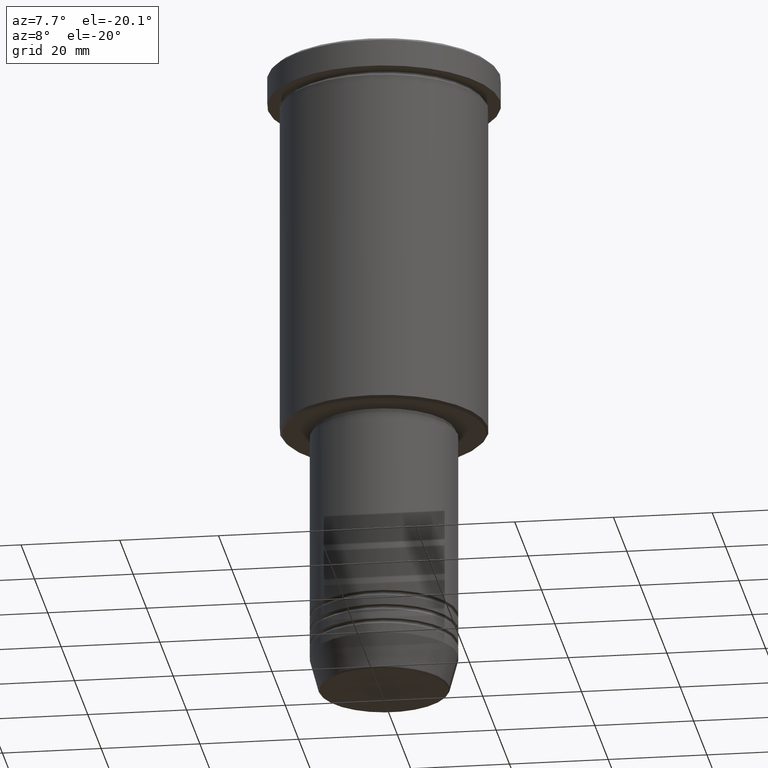
[diagram: clean part render]
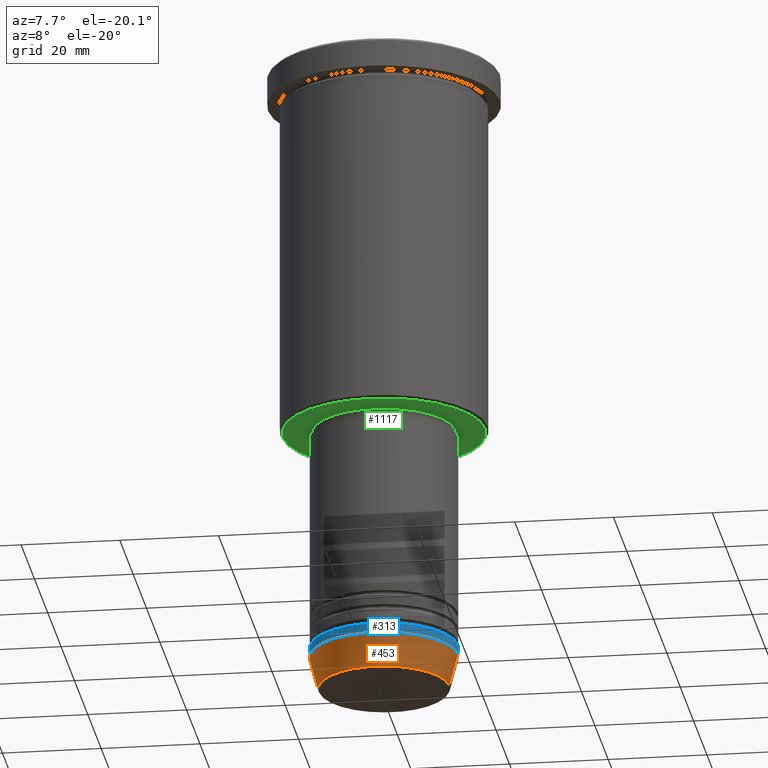
[diagram: same view with three faces highlighted in distinct colors, each labeled with its STEP entity id]
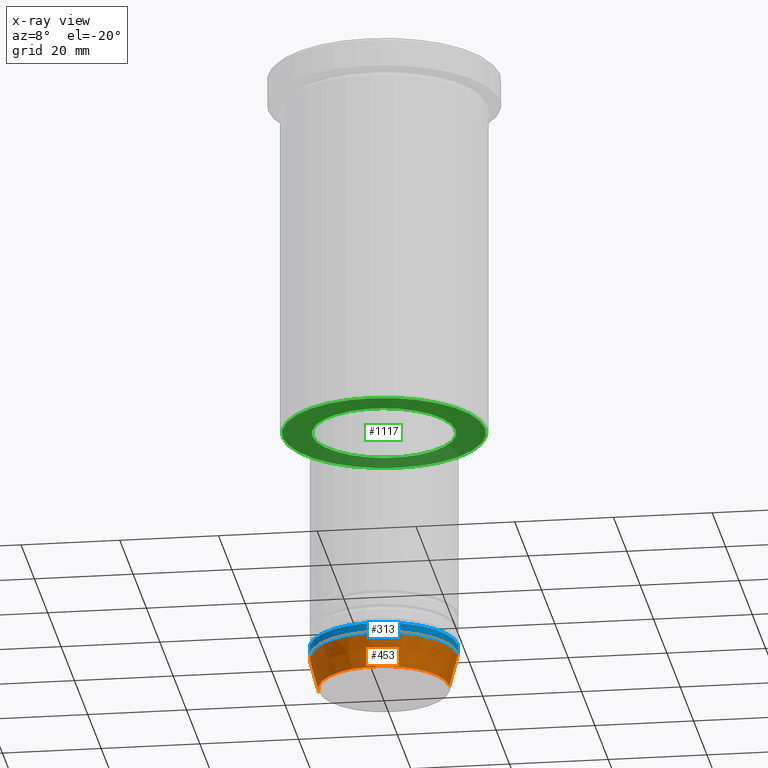
[diagram: x-ray of the same camera — body ghosted, the three highlighted faces saturated]
A machine part, auxiliary view with three faces highlighted in distinct colors.
The next image is the same camera in x-ray (body ghosted, the three faces saturated) — at least one of them is partly hidden behind the body in this view.
Their STEP definitions:

[orange] entity #453 — the highlighted conical surface has half-angle 15 deg.
#65 = VECTOR ( 'NONE', #552, 1000.000000000000000 ) ;
#73 = ORIENTED_EDGE ( 'NONE', *, *, #560, .F. ) ;
#79 = VECTOR ( 'NONE', #102, 1000.000000000000000 ) ;
#86 = DIRECTION ( 'NONE',  ( 1.000000000000000000, 0.000000000000000000, 0.000000000000000000 ) ) ;
#102 = DIRECTION ( 'NONE',  ( 0.2588190451025213501, 0.000000000000000000, 0.9659258262890680902 ) ) ;
#106 = EDGE_CURVE ( 'NONE', #672, #546, #416, .T. ) ;
#131 = FACE_OUTER_BOUND ( 'NONE', #980, .T. ) ;
#173 = AXIS2_PLACEMENT_3D ( 'NONE', #723, #253, #332 ) ;
#214 = CARTESIAN_POINT ( 'NONE',  ( -13.22365507213719305, 1.728200442216588386E-15, -130.6294095225512422 ) ) ;
#243 = AXIS2_PLACEMENT_3D ( 'NONE', #1007, #274, #86 ) ;
#253 = DIRECTION ( 'NONE',  ( -0.000000000000000000, -0.000000000000000000, 1.000000000000000000 ) ) ;
#274 = DIRECTION ( 'NONE',  ( -0.000000000000000000, -0.000000000000000000, 1.000000000000000000 ) ) ;
#277 = CARTESIAN_POINT ( 'NONE',  ( -15.00000000000000000, 1.836970198721029589E-15, -124.0000000000000000 ) ) ;
#332 = DIRECTION ( 'NONE',  ( 1.000000000000000000, 0.000000000000000000, 0.000000000000000000 ) ) ;
#389 = CARTESIAN_POINT ( 'NONE',  ( 13.22365507213719305, 0.000000000000000000, -130.6294095225512422 ) ) ;
#390 = DIRECTION ( 'NONE',  ( -0.000000000000000000, -0.000000000000000000, 1.000000000000000000 ) ) ;
#416 = CIRCLE ( 'NONE', #243, 15.00000000000000000 ) ;
#418 = AXIS2_PLACEMENT_3D ( 'NONE', #646, #390, #573 ) ;
#453 = ADVANCED_FACE ( 'NONE', ( #131 ), #1162, .T. ) ;
#460 = VERTEX_POINT ( 'NONE', #214 ) ;
#462 = ORIENTED_EDGE ( 'NONE', *, *, #106, .F. ) ;
#488 = CARTESIAN_POINT ( 'NONE',  ( -15.00000000000000000, 1.836970198721029589E-15, -124.0000000000000000 ) ) ;
#546 = VERTEX_POINT ( 'NONE', #841 ) ;
#552 = DIRECTION ( 'NONE',  ( -0.2588190451025213501, 3.169619151431772337E-17, 0.9659258262890680902 ) ) ;
#560 = EDGE_CURVE ( 'NONE', #460, #672, #731, .T. ) ;
#573 = DIRECTION ( 'NONE',  ( 1.000000000000000000, 0.000000000000000000, 0.000000000000000000 ) ) ;
#582 = CIRCLE ( 'NONE', #173, 13.22365507213719305 ) ;
#646 = CARTESIAN_POINT ( 'NONE',  ( 0.000000000000000000, 0.000000000000000000, -124.0000000000000000 ) ) ;
#672 = VERTEX_POINT ( 'NONE', #488 ) ;
#679 = ORIENTED_EDGE ( 'NONE', *, *, #884, .T. ) ;
#723 = CARTESIAN_POINT ( 'NONE',  ( 0.000000000000000000, 0.000000000000000000, -130.6294095225512422 ) ) ;
#731 = LINE ( 'NONE', #277, #65 ) ;
#756 = EDGE_CURVE ( 'NONE', #460, #922, #582, .T. ) ;
#817 = LINE ( 'NONE', #1010, #79 ) ;
#841 = CARTESIAN_POINT ( 'NONE',  ( 15.00000000000000000, 0.000000000000000000, -124.0000000000000000 ) ) ;
#884 = EDGE_CURVE ( 'NONE', #922, #546, #817, .T. ) ;
#922 = VERTEX_POINT ( 'NONE', #389 ) ;
#980 = EDGE_LOOP ( 'NONE', ( #73, #1109, #679, #462 ) ) ;
#1007 = CARTESIAN_POINT ( 'NONE',  ( 0.000000000000000000, 0.000000000000000000, -124.0000000000000000 ) ) ;
#1010 = CARTESIAN_POINT ( 'NONE',  ( 15.00000000000000000, 0.000000000000000000, -124.0000000000000000 ) ) ;
#1109 = ORIENTED_EDGE ( 'NONE', *, *, #756, .T. ) ;
#1162 = CONICAL_SURFACE ( 'NONE', #418, 15.00000000000000000, 0.2617993877991500740 ) ;

[blue] entity #313 — the highlighted cylindrical surface (partial cylindrical patch) has radius 15 mm, axis along (-0, -0, 1).
#35 = VERTEX_POINT ( 'NONE', #1123 ) ;
#86 = DIRECTION ( 'NONE',  ( 1.000000000000000000, 0.000000000000000000, 0.000000000000000000 ) ) ;
#106 = EDGE_CURVE ( 'NONE', #672, #546, #416, .T. ) ;
#116 = EDGE_CURVE ( 'NONE', #672, #35, #920, .T. ) ;
#141 = EDGE_CURVE ( 'NONE', #546, #1101, #768, .T. ) ;
#170 = EDGE_LOOP ( 'NONE', ( #1161, #410, #198, #562 ) ) ;
#186 = CYLINDRICAL_SURFACE ( 'NONE', #796, 15.00000000000000000 ) ;
#198 = ORIENTED_EDGE ( 'NONE', *, *, #141, .T. ) ;
#243 = AXIS2_PLACEMENT_3D ( 'NONE', #1007, #274, #86 ) ;
#274 = DIRECTION ( 'NONE',  ( -0.000000000000000000, -0.000000000000000000, 1.000000000000000000 ) ) ;
#278 = VECTOR ( 'NONE', #1168, 1000.000000000000000 ) ;
#313 = ADVANCED_FACE ( 'NONE', ( #1182 ), #186, .T. ) ;
#345 = DIRECTION ( 'NONE',  ( -0.000000000000000000, -0.000000000000000000, 1.000000000000000000 ) ) ;
#410 = ORIENTED_EDGE ( 'NONE', *, *, #106, .T. ) ;
#416 = CIRCLE ( 'NONE', #243, 15.00000000000000000 ) ;
#442 = CARTESIAN_POINT ( 'NONE',  ( -15.00000000000000000, 1.836970198721029589E-15, 0.000000000000000000 ) ) ;
#488 = CARTESIAN_POINT ( 'NONE',  ( -15.00000000000000000, 1.836970198721029589E-15, -124.0000000000000000 ) ) ;
#522 = CARTESIAN_POINT ( 'NONE',  ( 0.000000000000000000, 0.000000000000000000, 0.000000000000000000 ) ) ;
#546 = VERTEX_POINT ( 'NONE', #841 ) ;
#562 = ORIENTED_EDGE ( 'NONE', *, *, #959, .F. ) ;
#672 = VERTEX_POINT ( 'NONE', #488 ) ;
#739 = VECTOR ( 'NONE', #345, 1000.000000000000000 ) ;
#768 = LINE ( 'NONE', #1151, #278 ) ;
#770 = CARTESIAN_POINT ( 'NONE',  ( 15.00000000000000000, 0.000000000000000000, -122.0000000000000000 ) ) ;
#788 = CIRCLE ( 'NONE', #860, 15.00000000000000000 ) ;
#796 = AXIS2_PLACEMENT_3D ( 'NONE', #522, #899, #878 ) ;
#840 = DIRECTION ( 'NONE',  ( 1.000000000000000000, 0.000000000000000000, 0.000000000000000000 ) ) ;
#841 = CARTESIAN_POINT ( 'NONE',  ( 15.00000000000000000, 0.000000000000000000, -124.0000000000000000 ) ) ;
#860 = AXIS2_PLACEMENT_3D ( 'NONE', #933, #908, #840 ) ;
#878 = DIRECTION ( 'NONE',  ( 1.000000000000000000, 0.000000000000000000, 0.000000000000000000 ) ) ;
#899 = DIRECTION ( 'NONE',  ( -0.000000000000000000, -0.000000000000000000, 1.000000000000000000 ) ) ;
#908 = DIRECTION ( 'NONE',  ( -0.000000000000000000, -0.000000000000000000, 1.000000000000000000 ) ) ;
#920 = LINE ( 'NONE', #442, #739 ) ;
#933 = CARTESIAN_POINT ( 'NONE',  ( 0.000000000000000000, 0.000000000000000000, -122.0000000000000000 ) ) ;
#959 = EDGE_CURVE ( 'NONE', #35, #1101, #788, .T. ) ;
#1007 = CARTESIAN_POINT ( 'NONE',  ( 0.000000000000000000, 0.000000000000000000, -124.0000000000000000 ) ) ;
#1101 = VERTEX_POINT ( 'NONE', #770 ) ;
#1123 = CARTESIAN_POINT ( 'NONE',  ( -15.00000000000000000, 1.836970198721029589E-15, -122.0000000000000000 ) ) ;
#1151 = CARTESIAN_POINT ( 'NONE',  ( 15.00000000000000000, 0.000000000000000000, 0.000000000000000000 ) ) ;
#1161 = ORIENTED_EDGE ( 'NONE', *, *, #116, .F. ) ;
#1168 = DIRECTION ( 'NONE',  ( -0.000000000000000000, -0.000000000000000000, 1.000000000000000000 ) ) ;
#1182 = FACE_OUTER_BOUND ( 'NONE', #170, .T. ) ;

[green] entity #1117 — the highlighted planar face has unit normal (0, 0, -1).
#2 = AXIS2_PLACEMENT_3D ( 'NONE', #846, #231, #868 ) ;
#14 = AXIS2_PLACEMENT_3D ( 'NONE', #1032, #1133, #56 ) ;
#19 = VERTEX_POINT ( 'NONE', #208 ) ;
#21 = DIRECTION ( 'NONE',  ( 0.000000000000000000, 0.000000000000000000, -1.000000000000000000 ) ) ;
#44 = CARTESIAN_POINT ( 'NONE',  ( 20.49999999999998934, 0.000000000000000000, -75.99999999999998579 ) ) ;
#56 = DIRECTION ( 'NONE',  ( 1.000000000000000000, 0.000000000000000000, 0.000000000000000000 ) ) ;
#62 = FACE_BOUND ( 'NONE', #973, .T. ) ;
#127 = VERTEX_POINT ( 'NONE', #409 ) ;
#142 = DIRECTION ( 'NONE',  ( -1.000000000000000000, 0.000000000000000000, -0.000000000000000000 ) ) ;
#149 = CARTESIAN_POINT ( 'NONE',  ( 0.000000000000000000, 21.00000000000000000, -75.99999999999998579 ) ) ;
#164 = AXIS2_PLACEMENT_3D ( 'NONE', #149, #1037, #142 ) ;
#167 = CARTESIAN_POINT ( 'NONE',  ( 0.000000000000000000, 0.000000000000000000, -75.99999999999998579 ) ) ;
#175 = CARTESIAN_POINT ( 'NONE',  ( 14.49999999999999822, 0.000000000000000000, -75.99999999999998579 ) ) ;
#208 = CARTESIAN_POINT ( 'NONE',  ( -20.49999999999998934, 2.541142108230757480E-15, -75.99999999999998579 ) ) ;
#231 = DIRECTION ( 'NONE',  ( -0.000000000000000000, -0.000000000000000000, 1.000000000000000000 ) ) ;
#280 = ORIENTED_EDGE ( 'NONE', *, *, #1039, .T. ) ;
#322 = PLANE ( 'NONE',  #164 ) ;
#330 = ORIENTED_EDGE ( 'NONE', *, *, #857, .T. ) ;
#376 = ORIENTED_EDGE ( 'NONE', *, *, #669, .T. ) ;
#380 = DIRECTION ( 'NONE',  ( -1.000000000000000000, 0.000000000000000000, 0.000000000000000000 ) ) ;
#409 = CARTESIAN_POINT ( 'NONE',  ( -14.49999999999999822, 1.775737858763662015E-15, -75.99999999999998579 ) ) ;
#437 = DIRECTION ( 'NONE',  ( -1.000000000000000000, 0.000000000000000000, 0.000000000000000000 ) ) ;
#500 = CIRCLE ( 'NONE', #2, 14.49999999999999822 ) ;
#580 = FACE_OUTER_BOUND ( 'NONE', #914, .T. ) ;
#641 = AXIS2_PLACEMENT_3D ( 'NONE', #717, #21, #380 ) ;
#669 = EDGE_CURVE ( 'NONE', #127, #744, #500, .T. ) ;
#717 = CARTESIAN_POINT ( 'NONE',  ( 0.000000000000000000, 0.000000000000000000, -75.99999999999998579 ) ) ;
#742 = CIRCLE ( 'NONE', #1130, 20.49999999999998934 ) ;
#744 = VERTEX_POINT ( 'NONE', #175 ) ;
#801 = EDGE_CURVE ( 'NONE', #1125, #19, #742, .T. ) ;
#812 = CIRCLE ( 'NONE', #641, 20.49999999999998934 ) ;
#846 = CARTESIAN_POINT ( 'NONE',  ( 0.000000000000000000, 0.000000000000000000, -75.99999999999998579 ) ) ;
#857 = EDGE_CURVE ( 'NONE', #19, #1125, #812, .T. ) ;
#868 = DIRECTION ( 'NONE',  ( 1.000000000000000000, 0.000000000000000000, 0.000000000000000000 ) ) ;
#914 = EDGE_LOOP ( 'NONE', ( #1009, #330 ) ) ;
#973 = EDGE_LOOP ( 'NONE', ( #280, #376 ) ) ;
#1009 = ORIENTED_EDGE ( 'NONE', *, *, #801, .T. ) ;
#1032 = CARTESIAN_POINT ( 'NONE',  ( 0.000000000000000000, 0.000000000000000000, -75.99999999999998579 ) ) ;
#1037 = DIRECTION ( 'NONE',  ( 0.000000000000000000, 0.000000000000000000, -1.000000000000000000 ) ) ;
#1039 = EDGE_CURVE ( 'NONE', #744, #127, #1040, .T. ) ;
#1040 = CIRCLE ( 'NONE', #14, 14.49999999999999822 ) ;
#1117 = ADVANCED_FACE ( 'NONE', ( #580, #62 ), #322, .T. ) ;
#1125 = VERTEX_POINT ( 'NONE', #44 ) ;
#1130 = AXIS2_PLACEMENT_3D ( 'NONE', #167, #1172, #437 ) ;
#1133 = DIRECTION ( 'NONE',  ( -0.000000000000000000, -0.000000000000000000, 1.000000000000000000 ) ) ;
#1172 = DIRECTION ( 'NONE',  ( 0.000000000000000000, 0.000000000000000000, -1.000000000000000000 ) ) ;